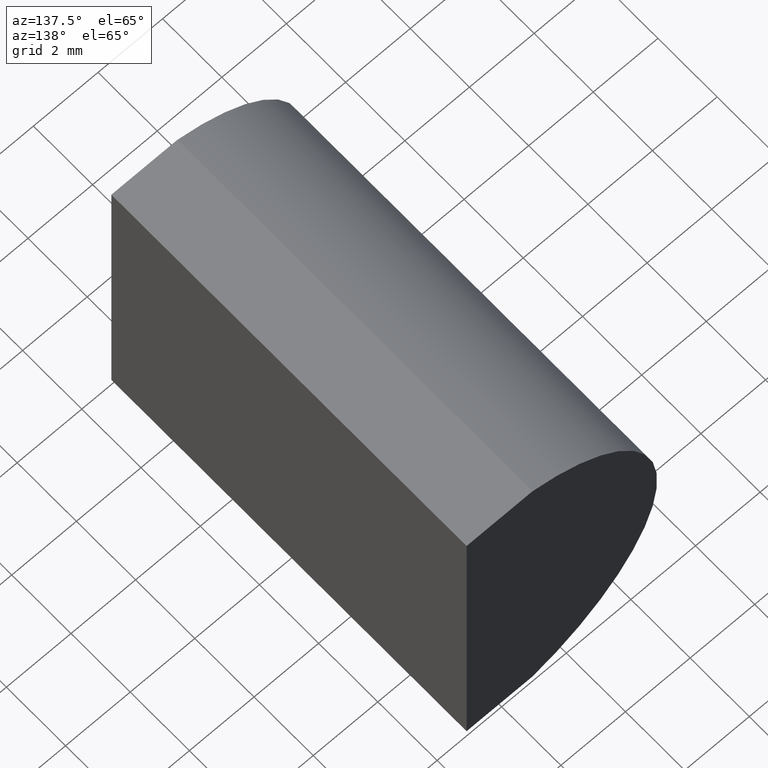
[diagram: clean part render]
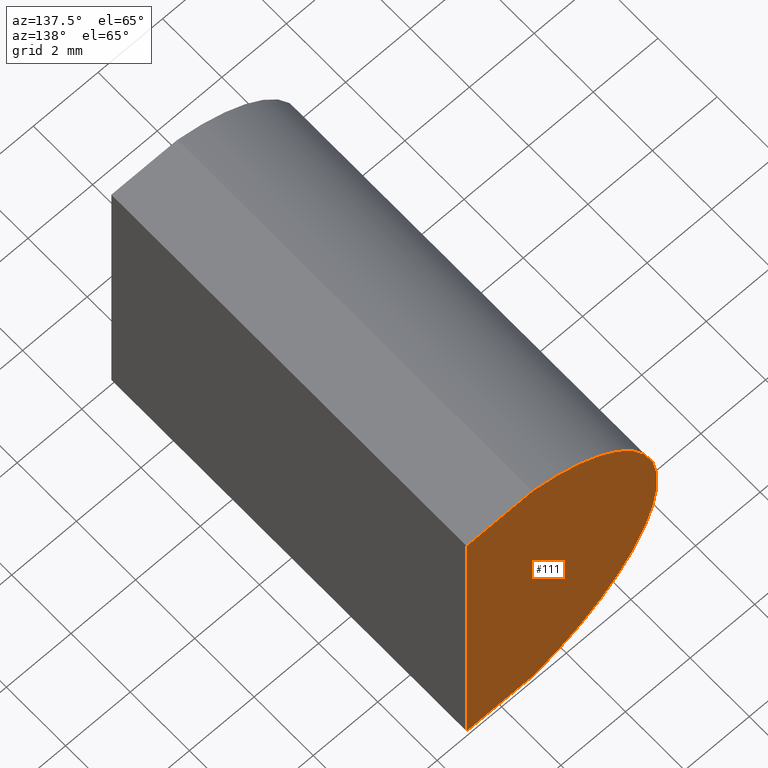
[diagram: same view with one face highlighted and labeled with its STEP entity id]
A machine part, auxiliary view. The second image highlights one B-rep face of the part: STEP entity #111.
In plain terms, the highlighted planar face has unit normal (0, 1, 0).
Its self-contained STEP definition (entity closure, byte-faithful):
#11 = CIRCLE ( 'NONE', #96, 5.169999999999999000 ) ;
#37 = VERTEX_POINT ( 'NONE', #164 ) ;
#43 = FACE_OUTER_BOUND ( 'NONE', #64, .T. ) ;
#50 = CARTESIAN_POINT ( 'NONE',  ( 3.040327914802600300, 12.00000000000000000, 5.000000000000000000 ) ) ;
#51 = DIRECTION ( 'NONE',  ( 1.000000000000000000, 0.0000000000000000000, 0.0000000000000000000 ) ) ;
#58 = LINE ( 'NONE', #101, #128 ) ;
#64 = EDGE_LOOP ( 'NONE', ( #163, #126, #145, #119 ) ) ;
#65 = DIRECTION ( 'NONE',  ( -1.000000000000000000, -0.0000000000000000000, 8.483268030131251300E-016 ) ) ;
#73 = CARTESIAN_POINT ( 'NONE',  ( 5.085204334851267700, 12.00000000000000000, 5.000000000000000000 ) ) ;
#75 = EDGE_CURVE ( 'NONE', #93, #199, #11, .T. ) ;
#80 = DIRECTION ( 'NONE',  ( 0.0000000000000000000, 1.000000000000000000, 0.0000000000000000000 ) ) ;
#81 = VECTOR ( 'NONE', #51, 1000.000000000000000 ) ;
#82 = DIRECTION ( 'NONE',  ( 0.0000000000000000000, -0.0000000000000000000, 1.000000000000000000 ) ) ;
#83 = PLANE ( 'NONE',  #198 ) ;
#88 = CARTESIAN_POINT ( 'NONE',  ( 4.355204334851265500, 12.00000000000000000, 4.286263797015675000E-017 ) ) ;
#92 = DIRECTION ( 'NONE',  ( -3.469446951953613700E-016, -0.0000000000000000000, -1.000000000000000000 ) ) ;
#93 = VERTEX_POINT ( 'NONE', #159 ) ;
#95 = VECTOR ( 'NONE', #92, 1000.000000000000000 ) ;
#96 = AXIS2_PLACEMENT_3D ( 'NONE', #109, #103, #102 ) ;
#101 = CARTESIAN_POINT ( 'NONE',  ( 3.040327914802600800, 12.00000000000000000, -5.000000000000000000 ) ) ;
#102 = DIRECTION ( 'NONE',  ( 0.0000000000000000000, 0.0000000000000000000, 1.000000000000000000 ) ) ;
#103 = DIRECTION ( 'NONE',  ( 0.0000000000000000000, 1.000000000000000000, 0.0000000000000000000 ) ) ;
#107 = EDGE_CURVE ( 'NONE', #37, #93, #58, .T. ) ;
#109 = CARTESIAN_POINT ( 'NONE',  ( 4.355204334851265500, 12.00000000000000000, 4.286263797015675000E-017 ) ) ;
#111 = ADVANCED_FACE ( 'NONE', ( #43 ), #83, .T. ) ;
#119 = ORIENTED_EDGE ( 'NONE', *, *, #107, .T. ) ;
#123 = LINE ( 'NONE', #195, #95 ) ;
#126 = ORIENTED_EDGE ( 'NONE', *, *, #146, .T. ) ;
#128 = VECTOR ( 'NONE', #65, 1000.000000000000000 ) ;
#145 = ORIENTED_EDGE ( 'NONE', *, *, #158, .T. ) ;
#146 = EDGE_CURVE ( 'NONE', #199, #203, #152, .T. ) ;
#152 = LINE ( 'NONE', #50, #81 ) ;
#158 = EDGE_CURVE ( 'NONE', #203, #37, #123, .T. ) ;
#159 = CARTESIAN_POINT ( 'NONE',  ( 3.040327914802600800, 12.00000000000000000, -5.000000000000000000 ) ) ;
#163 = ORIENTED_EDGE ( 'NONE', *, *, #75, .T. ) ;
#164 = CARTESIAN_POINT ( 'NONE',  ( 5.085204334851264100, 12.00000000000000000, -5.000000000000001800 ) ) ;
#194 = CARTESIAN_POINT ( 'NONE',  ( 3.040327914802600300, 12.00000000000000000, 5.000000000000000000 ) ) ;
#195 = CARTESIAN_POINT ( 'NONE',  ( 5.085204334851264100, 12.00000000000000000, -5.000000000000001800 ) ) ;
#198 = AXIS2_PLACEMENT_3D ( 'NONE', #88, #80, #82 ) ;
#199 = VERTEX_POINT ( 'NONE', #194 ) ;
#203 = VERTEX_POINT ( 'NONE', #73 ) ;